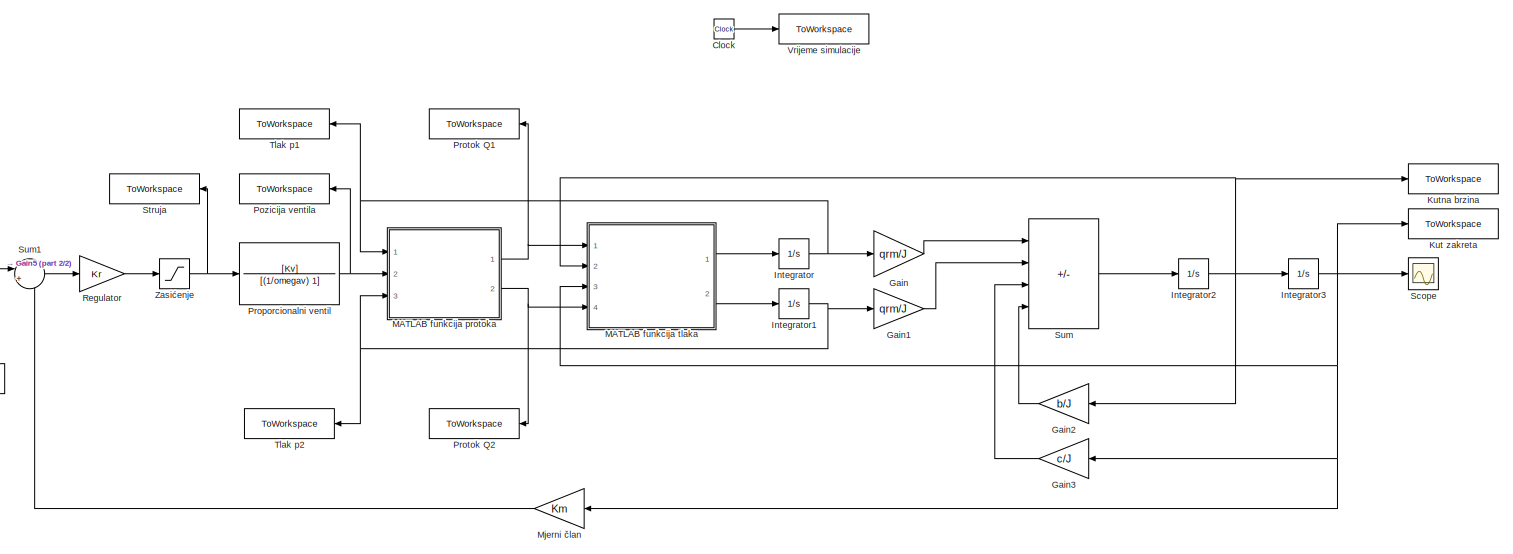
[diagram: root canvas - part 1/2, most of the canvas]
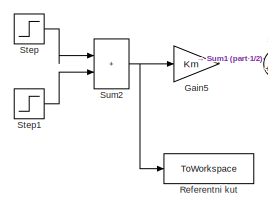
[diagram: root canvas - part 2/2, middle left region]
MODEL slx_6745cd05db6e
KIND model
CONFIG AbsTol = auto
CONFIG EnableMultiTasking = off
CONFIG FixedStep = auto
CONFIG MaxStep = auto
CONFIG MinStep = auto
CONFIG RelTol = 1e-3
CONFIG SampleTimeConstraint = Unconstrained
CONFIG SolverName = VariableStepAuto
CONFIG StartTime = 0.0
CONFIG StopTime = 4
BLOCK [Clock] Clock
BLOCK [Gain] Gain
  Gain = qrm/J
BLOCK [Gain] Gain1
  Gain = qrm/J
BLOCK [Gain] Gain2
  Gain = b/J
  NameLocation = top
BLOCK [Gain] Gain3
  Gain = c/J
  NameLocation = top
BLOCK [Gain] Gain5
  Gain = Km
BLOCK [Integrator] Integrator
  Ports = [1, 1]
BLOCK [Integrator] Integrator1
  Ports = [1, 1]
BLOCK [Integrator] Integrator2
  Ports = [1, 1]
BLOCK [Integrator] Integrator3
  Ports = [1, 1]
BLOCK [ToWorkspace] Kut zakreta
  FixptAsFi = on
  MaxDataPoints = inf
  Ports = [1]
  SampleTime = -1
  VariableName = theta_m
BLOCK [ToWorkspace] Kutna brzina
  FixptAsFi = on
  MaxDataPoints = inf
  Ports = [1]
  SampleTime = -1
  VariableName = omega_m
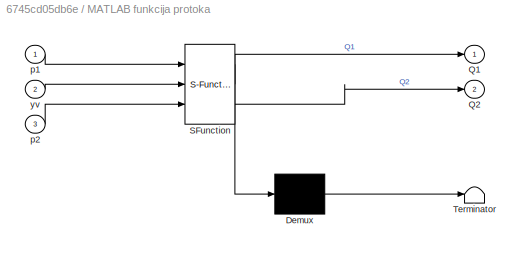
BLOCK [SubSystem] MATLAB funkcija protoka
  ErrorFcn = Stateflow.Translate.translate
  PermitHierarchicalResolution = ExplicitOnly
  Ports = [3, 2]
  RequestExecContextInheritance = off
  SFBlockType = MATLAB Function
  TreatAsAtomicUnit = on
BLOCK [Demux] MATLAB funkcija protoka/ Demux 
  Outputs = 1
  Ports = [1, 1]
BLOCK [S-Function] MATLAB funkcija protoka/ SFunction 
  EnableBusSupport = on
  FunctionName = sf_sfun
  PortCounts = [3 3]
  Ports = [3, 3]
  SFcnIsStateOwnerBlock = off
  SFunctionDeploymentMode = off
  Tag = Stateflow S-Function 1
BLOCK [Terminator] MATLAB funkcija protoka/ Terminator 
BLOCK [Outport] MATLAB funkcija protoka/Q1
BLOCK [Outport] MATLAB funkcija protoka/Q2
  Port = 2
BLOCK [Inport] MATLAB funkcija protoka/p1
BLOCK [Inport] MATLAB funkcija protoka/p2
  Port = 3
BLOCK [Inport] MATLAB funkcija protoka/yv
  Port = 2
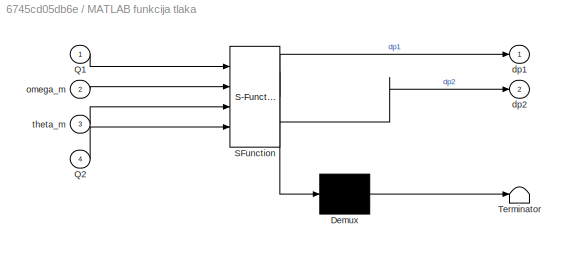
BLOCK [SubSystem] MATLAB funkcija tlaka
  ErrorFcn = Stateflow.Translate.translate
  PermitHierarchicalResolution = ExplicitOnly
  Ports = [4, 2]
  RequestExecContextInheritance = off
  SFBlockType = MATLAB Function
  TreatAsAtomicUnit = on
BLOCK [Demux] MATLAB funkcija tlaka/ Demux 
  Outputs = 1
  Ports = [1, 1]
BLOCK [S-Function] MATLAB funkcija tlaka/ SFunction 
  EnableBusSupport = on
  FunctionName = sf_sfun
  PortCounts = [4 3]
  Ports = [4, 3]
  SFcnIsStateOwnerBlock = off
  SFunctionDeploymentMode = off
  Tag = Stateflow S-Function 2
BLOCK [Terminator] MATLAB funkcija tlaka/ Terminator 
BLOCK [Inport] MATLAB funkcija tlaka/Q1
BLOCK [Inport] MATLAB funkcija tlaka/Q2
  Port = 4
BLOCK [Outport] MATLAB funkcija tlaka/dp1
BLOCK [Outport] MATLAB funkcija tlaka/dp2
  Port = 2
BLOCK [Inport] MATLAB funkcija tlaka/omega_m
  Port = 2
BLOCK [Inport] MATLAB funkcija tlaka/theta_m
  Port = 3
BLOCK [Gain] Mjerni član
  Gain = Km
  NameLocation = top
BLOCK [ToWorkspace] Pozicija ventila
  FixptAsFi = on
  MaxDataPoints = inf
  NameLocation = top
  Ports = [1]
  SampleTime = -1
  VariableName = yv
BLOCK [TransferFcn] Proporcionalni ventil
  Denominator = [(1/omegav) 1]
  Numerator = [Kv]
BLOCK [ToWorkspace] Protok Q1
  FixptAsFi = on
  MaxDataPoints = inf
  NameLocation = top
  Ports = [1]
  SampleTime = -1
  VariableName = Q1
BLOCK [ToWorkspace] Protok Q2
  FixptAsFi = on
  MaxDataPoints = inf
  NameLocation = top
  Ports = [1]
  SampleTime = -1
  VariableName = Q2
BLOCK [ToWorkspace] Referentni kut
  FixptAsFi = on
  MaxDataPoints = inf
  Ports = [1]
  SampleTime = -1
  VariableName = theta_r
BLOCK [Gain] Regulator
  Gain = Kr
BLOCK [Scope] Scope
  Floating = off
  NumInputPorts = 1
  Ports = [1]
  ScopeSpecificationString = Simulink.scopes.TimeScopeBlockCfg('CurrentConfiguration', extmgr.ConfigurationSet(extmgr.Configuration('Core','General UI',true),extmgr.Configuration('Core','Source UI',true),extmgr.Configuration('Sources','WiredSimulink',true),extmgr.Configuration('Visuals','Time Domain',true,'SerializedDisplays',{struct('MinYLimReal','-2.4493','MaxYLimReal','2.97293','YLabelReal','','MinYLimMag','0.00000','MaxYL...<+1377ch>
BLOCK [Step] Step
  SampleTime = 0
  Time = 0
BLOCK [Step] Step1
  After = -2
  SampleTime = 0
  Time = 2
BLOCK [ToWorkspace] Struja
  FixptAsFi = on
  MaxDataPoints = inf
  NameLocation = top
  Ports = [1]
  SampleTime = -1
  VariableName = i
BLOCK [Sum] Sum
  IconShape = rectangular
  Inputs = |+---
  Ports = [4, 1]
BLOCK [Sum] Sum1
  Inputs = |+-
  Ports = [2, 1]
BLOCK [Sum] Sum2
  IconShape = rectangular
  Inputs = |++
  Ports = [2, 1]
BLOCK [ToWorkspace] Tlak p1
  FixptAsFi = on
  MaxDataPoints = inf
  NameLocation = top
  Ports = [1]
  SampleTime = -1
  VariableName = p1
BLOCK [ToWorkspace] Tlak p2
  FixptAsFi = on
  MaxDataPoints = inf
  NameLocation = top
  Ports = [1]
  SampleTime = -1
  VariableName = p2
BLOCK [ToWorkspace] Vrijeme simulacije
  FixptAsFi = on
  MaxDataPoints = inf
  Ports = [1]
  SampleTime = -1
  VariableName = t
BLOCK [Saturate] Zasićenje
  LowerLimit = -10
  UpperLimit = 10
LINE Clock:1 -> Vrijeme simulacije:1
LINE Gain1:1 -> Sum:2
LINE Gain2:1 -> Sum:4
LINE Gain3:1 -> Sum:3
LINE Gain5:1 -> Sum1:1
LINE Gain:1 -> Sum:1
NET Integrator1:1 -> Gain1:1, MATLAB funkcija protoka:3, Tlak p2:1
NET Integrator2:1 -> Gain2:1, Integrator3:1, Kutna brzina:1, MATLAB funkcija tlaka:2
NET Integrator3:1 -> Gain3:1, Kut zakreta:1, MATLAB funkcija tlaka:3, Mjerni član:1, Scope:1
NET Integrator:1 -> Gain:1, MATLAB funkcija protoka:1, Tlak p1:1
NET MATLAB funkcija protoka:1 -> MATLAB funkcija tlaka:1, Protok Q1:1
NET MATLAB funkcija protoka:2 -> MATLAB funkcija tlaka:4, Protok Q2:1
LINE MATLAB funkcija tlaka:1 -> Integrator:1
LINE MATLAB funkcija tlaka:2 -> Integrator1:1
LINE Mjerni član:1 -> Sum1:2
NET Proporcionalni ventil:1 -> MATLAB funkcija protoka:2, Pozicija ventila:1
LINE Regulator:1 -> Zasićenje:1
LINE Step1:1 -> Sum2:2
LINE Step:1 -> Sum2:1
LINE Sum1:1 -> Regulator:1
NET Sum2:1 -> Gain5:1, Referentni kut:1
LINE Sum:1 -> Integrator2:1
NET Zasićenje:1 -> Proporcionalni ventil:1, Struja:1
note: NET lines group one-source signal fan-out (src -> all destinations, sorted); 1:1 wires keep LINE
CHART MATLAB funkcija protoka states=1 transitions=1
  STATE_LABEL 'eML_blk_kernel()'
  STATE_LABEL 'SCRIPT:\nfunction [Q1, Q2] = protok(p1, yv, p2)\n\nps = 100e5;\npa = 1e5;\n\nif yv >= 0\n    Q1 = yv * sqrt(abs(ps - p1)) * sign(ps - p1);\n    Q2 = -yv * sqrt(abs(p2 - pa)) * sign(p2 - pa);\nelse\n    Q1 = yv * sqrt(abs(p1 - pa)) * sign(p1 - pa);\n    Q2 = -yv * sqrt(abs(ps - p2)) * sign(ps - p2);\nend\n\nend\n'
CHART MATLAB funkcija tlaka states=1 transitions=1
  STATE_LABEL 'eML_blk_kernel()'
  STATE_LABEL 'SCRIPT:\nfunction [dp1, dp2] = tlak(Q1, omega_m, theta_m, Q2)\n\nqrm = 25.4e-6;\nB = 1350e6;\nV0 = 150e-6;\n\ndp1 = (B/(V0 + qrm*theta_m) * (Q1 - qrm*omega_m));\ndp2 = (B/(V0 - qrm*theta_m) * (Q2 + qrm*omega_m));\n\nend'
CHART  states=0 transitions=0
CHART  states=0 transitions=0
